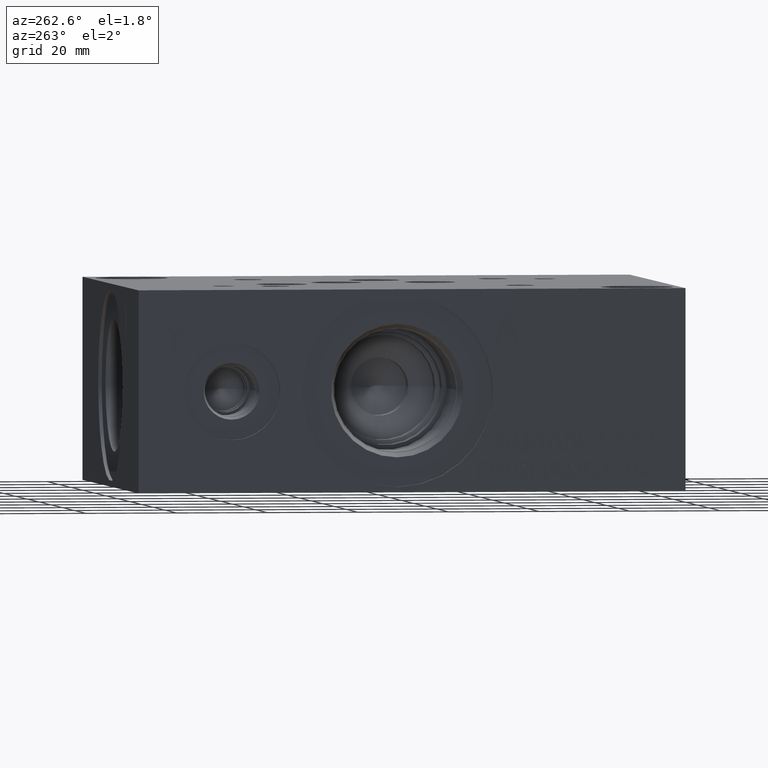
[diagram: clean part render]
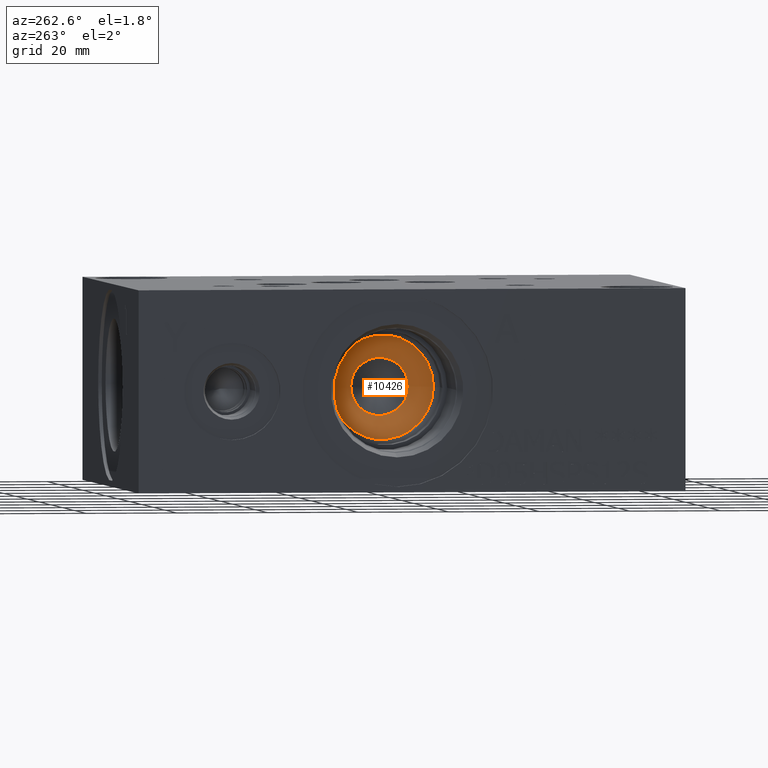
[diagram: same view with one face highlighted and labeled with its STEP entity id]
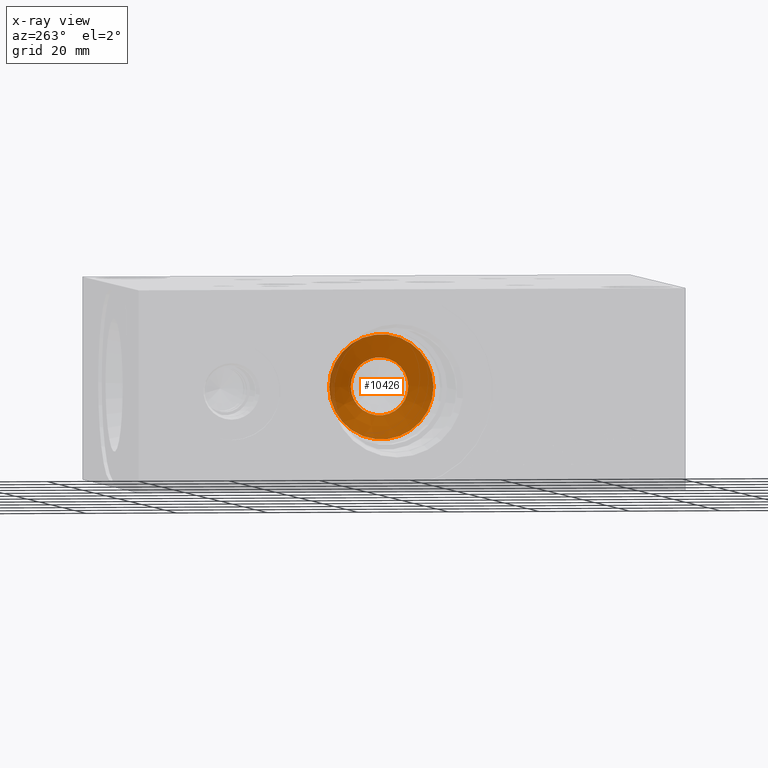
[diagram: x-ray of the same camera — body ghosted, the highlighted face saturated]
A machine part, auxiliary view. The second image highlights one B-rep face of the part: STEP entity #10426.
The next image is the same camera in x-ray: the body ghosted, the highlighted face saturated — about 6% of this face is hidden behind the body in this view.
In plain terms, the highlighted conical surface has half-angle 60 deg.
Its self-contained STEP definition (entity closure, byte-faithful):
#25=CONICAL_SURFACE('',#10919,5.7531,1.0471975511966);
#172=CIRCLE('',#10918,6.35);
#173=CIRCLE('',#10920,11.5062);
#174=CIRCLE('',#10921,11.5062);
#1207=FACE_OUTER_BOUND('',#1786,.T.);
#1786=EDGE_LOOP('',(#8839,#8840,#8841,#8842,#8843));
#2835=LINE('',#17605,#3840);
#3840=VECTOR('',#12868,5.7531);
#4771=VERTEX_POINT('',#17598);
#4772=VERTEX_POINT('',#17602);
#4773=VERTEX_POINT('',#17603);
#6169=EDGE_CURVE('',#4771,#4771,#172,.T.);
#6171=EDGE_CURVE('',#4772,#4773,#173,.T.);
#6172=EDGE_CURVE('',#4773,#4771,#2835,.T.);
#6173=EDGE_CURVE('',#4773,#4772,#174,.T.);
#8839=ORIENTED_EDGE('',*,*,#6171,.T.);
#8840=ORIENTED_EDGE('',*,*,#6172,.T.);
#8841=ORIENTED_EDGE('',*,*,#6169,.T.);
#8842=ORIENTED_EDGE('',*,*,#6172,.F.);
#8843=ORIENTED_EDGE('',*,*,#6173,.T.);
#10426=ADVANCED_FACE('',(#1207),#25,.F.);
#10918=AXIS2_PLACEMENT_3D('',#17599,#12861,#12862);
#10919=AXIS2_PLACEMENT_3D('',#17601,#12864,#12865);
#10920=AXIS2_PLACEMENT_3D('',#17604,#12866,#12867);
#10921=AXIS2_PLACEMENT_3D('',#17606,#12869,#12870);
#12861=DIRECTION('center_axis',(1.,0.,0.));
#12862=DIRECTION('ref_axis',(0.,1.,0.));
#12864=DIRECTION('center_axis',(-1.,0.,0.));
#12865=DIRECTION('ref_axis',(0.,1.,0.));
#12866=DIRECTION('center_axis',(-1.,0.,0.));
#12867=DIRECTION('ref_axis',(0.,1.,0.));
#12868=DIRECTION('',(0.5,0.866025403784439,-1.06057523872491E-16));
#12869=DIRECTION('center_axis',(-1.,0.,0.));
#12870=DIRECTION('ref_axis',(0.,1.,0.));
#17598=CARTESIAN_POINT('',(30.7645334579956,57.15,22.225));
#17599=CARTESIAN_POINT('Origin',(30.7645334579956,63.5,22.225));
#17601=CARTESIAN_POINT('Origin',(31.1091538336748,63.5,22.225));
#17602=CARTESIAN_POINT('',(27.7876,75.0062,22.225));
#17603=CARTESIAN_POINT('',(27.7876,51.9938,22.225));
#17604=CARTESIAN_POINT('Origin',(27.7876,63.5,22.225));
#17605=CARTESIAN_POINT('',(31.1091538336748,57.7469,22.225));
#17606=CARTESIAN_POINT('Origin',(27.7876,63.5,22.225));